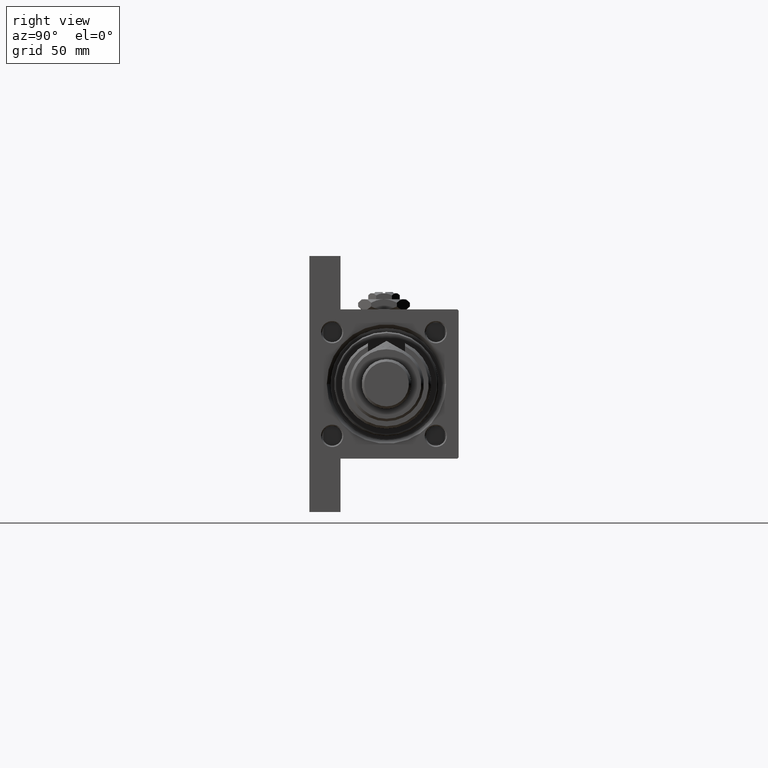
[diagram: clean part render]
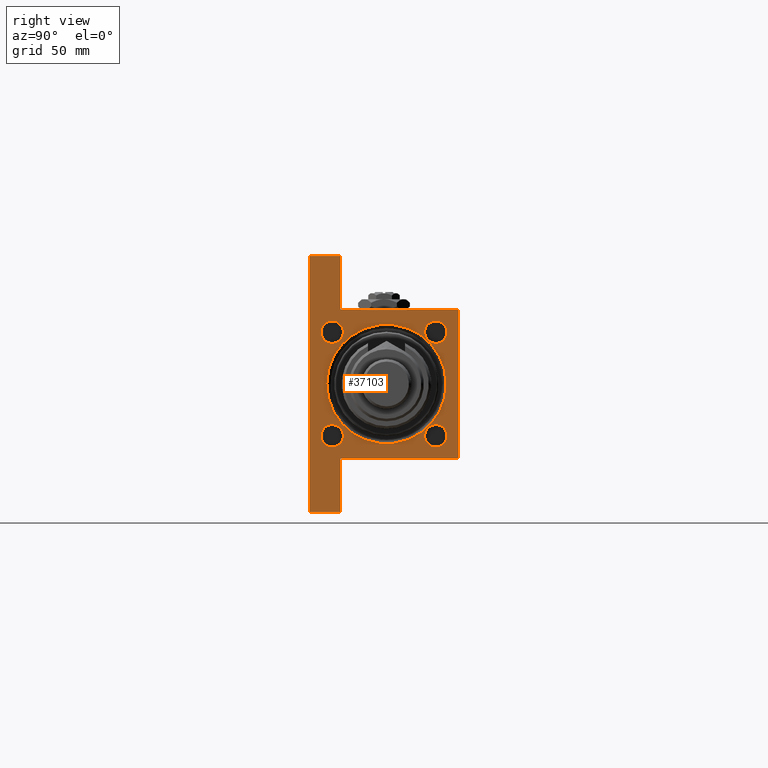
[diagram: same view with one face highlighted and labeled with its STEP entity id]
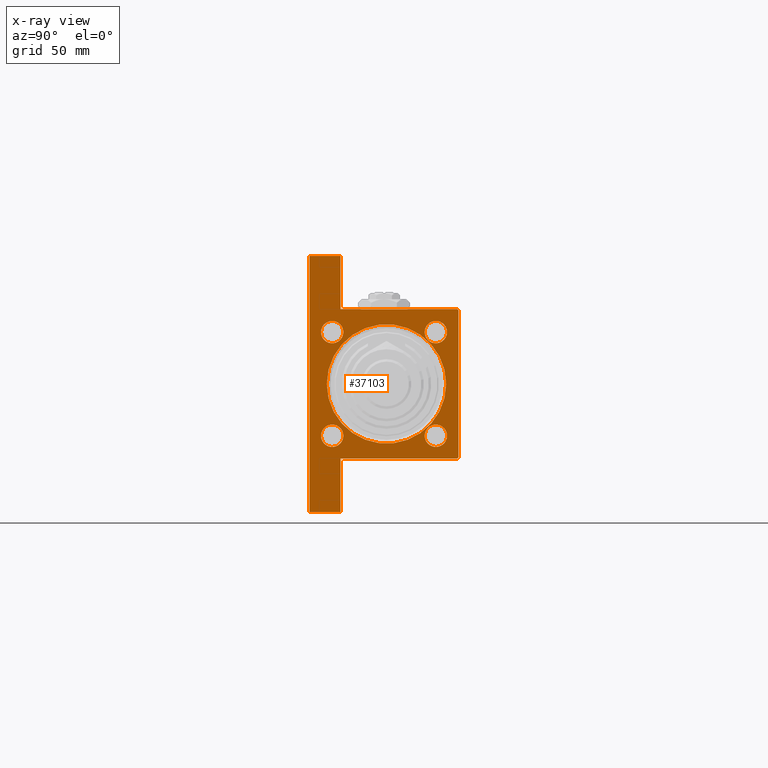
[diagram: x-ray of the same camera — body ghosted, the highlighted face saturated]
A machine part, right view. The second image highlights one B-rep face of the part: STEP entity #37103.
The next image is the same camera in x-ray: the body ghosted, the highlighted face saturated — about 0% of this face is hidden behind the body in this view.
In plain terms, the highlighted planar face has unit normal (-1, 0, -0).
Its self-contained STEP definition (entity closure, byte-faithful):
#21 = AXIS2_PLACEMENT_3D ( 'NONE', #46358, #45297, #29021 ) ;
#243 = CARTESIAN_POINT ( 'NONE',  ( 148.0000000000000000, 20.84999999999999787, 25.34999999999999076 ) ) ;
#399 = CARTESIAN_POINT ( 'NONE',  ( 148.0000000000000000, 20.84999999999999787, 20.85000000000000142 ) ) ;
#1059 = EDGE_CURVE ( 'NONE', #16541, #41829, #20651, .T. ) ;
#1921 = EDGE_CURVE ( 'NONE', #27005, #7205, #39138, .T. ) ;
#2018 = VECTOR ( 'NONE', #42343, 1000.000000000000000 ) ;
#2399 = ORIENTED_EDGE ( 'NONE', *, *, #2448, .T. ) ;
#2448 = EDGE_CURVE ( 'NONE', #33938, #47965, #46711, .T. ) ;
#2578 = DIRECTION ( 'NONE',  ( 0.000000000000000000, 0.000000000000000000, 1.000000000000000000 ) ) ;
#3714 = LINE ( 'NONE', #16721, #10689 ) ;
#4102 = VECTOR ( 'NONE', #15295, 1000.000000000000000 ) ;
#4621 = EDGE_CURVE ( 'NONE', #45165, #6705, #19100, .T. ) ;
#4739 = VERTEX_POINT ( 'NONE', #35497 ) ;
#4856 = CARTESIAN_POINT ( 'NONE',  ( 148.0000000000000000, -30.00000000000000000, 29.50000000000004619 ) ) ;
#5110 = DIRECTION ( 'NONE',  ( 0.000000000000000000, 0.000000000000000000, 1.000000000000000000 ) ) ;
#5243 = DIRECTION ( 'NONE',  ( -0.000000000000000000, 0.000000000000000000, 1.000000000000000000 ) ) ;
#5522 = FACE_BOUND ( 'NONE', #50068, .T. ) ;
#6151 = CARTESIAN_POINT ( 'NONE',  ( 148.0000000000000000, -30.00000000000000000, 29.99999999999999289 ) ) ;
#6228 = ORIENTED_EDGE ( 'NONE', *, *, #42849, .T. ) ;
#6229 = EDGE_CURVE ( 'NONE', #31622, #42554, #43378, .T. ) ;
#6528 = ORIENTED_EDGE ( 'NONE', *, *, #1921, .T. ) ;
#6615 = DIRECTION ( 'NONE',  ( 0.000000000000000000, 0.000000000000000000, 1.000000000000000000 ) ) ;
#6629 = CARTESIAN_POINT ( 'NONE',  ( 148.0000000000000000, 30.00000000000000000, 29.50000000000000000 ) ) ;
#6705 = VERTEX_POINT ( 'NONE', #9682 ) ;
#7205 = VERTEX_POINT ( 'NONE', #21759 ) ;
#7505 = CIRCLE ( 'NONE', #36092, 4.499999999999990230 ) ;
#7921 = VECTOR ( 'NONE', #18624, 1000.000000000000114 ) ;
#8441 = DIRECTION ( 'NONE',  ( 0.000000000000000000, -1.000000000000000000, -1.156482317317871478E-16 ) ) ;
#8652 = VERTEX_POINT ( 'NONE', #41731 ) ;
#9078 = CIRCLE ( 'NONE', #33319, 4.499999999999990230 ) ;
#9309 = EDGE_CURVE ( 'NONE', #8652, #4739, #12201, .T. ) ;
#9682 = CARTESIAN_POINT ( 'NONE',  ( 148.0000000000000000, 20.84999999999999787, 16.35000000000001208 ) ) ;
#10183 = DIRECTION ( 'NONE',  ( -1.000000000000000000, 0.000000000000000000, -0.000000000000000000 ) ) ;
#10205 = LINE ( 'NONE', #23217, #7921 ) ;
#10689 = VECTOR ( 'NONE', #12406, 1000.000000000000000 ) ;
#10724 = DIRECTION ( 'NONE',  ( 0.000000000000000000, 0.000000000000000000, 1.000000000000000000 ) ) ;
#10881 = ORIENTED_EDGE ( 'NONE', *, *, #32187, .T. ) ;
#11058 = EDGE_LOOP ( 'NONE', ( #50637, #22202 ) ) ;
#11224 = EDGE_CURVE ( 'NONE', #13423, #20517, #18203, .T. ) ;
#11959 = ORIENTED_EDGE ( 'NONE', *, *, #12270, .T. ) ;
#12201 = LINE ( 'NONE', #16518, #24371 ) ;
#12270 = EDGE_CURVE ( 'NONE', #6705, #45165, #7505, .T. ) ;
#12313 = CARTESIAN_POINT ( 'NONE',  ( 148.0000000000000000, 2.939152317953652628E-15, 25.00000000000004619 ) ) ;
#12406 = DIRECTION ( 'NONE',  ( -0.000000000000000000, -0.7071067811865671127, -0.7071067811865279218 ) ) ;
#12549 = AXIS2_PLACEMENT_3D ( 'NONE', #46211, #33731, #5243 ) ;
#13199 = CARTESIAN_POINT ( 'NONE',  ( 148.0000000000000000, 29.99999999999999289, -17.49999999999999645 ) ) ;
#13274 = DIRECTION ( 'NONE',  ( -1.000000000000000000, 0.000000000000000000, -0.000000000000000000 ) ) ;
#13402 = FACE_BOUND ( 'NONE', #11058, .T. ) ;
#13423 = VERTEX_POINT ( 'NONE', #23842 ) ;
#13452 = CARTESIAN_POINT ( 'NONE',  ( 148.0000000000000000, -51.50000000000000711, -17.49999999999999645 ) ) ;
#13569 = DIRECTION ( 'NONE',  ( -1.000000000000000000, 0.000000000000000000, -0.000000000000000000 ) ) ;
#13924 = CARTESIAN_POINT ( 'NONE',  ( 148.0000000000000000, -20.85000000000000142, -20.85000000000000142 ) ) ;
#14030 = DIRECTION ( 'NONE',  ( 0.000000000000000000, 0.000000000000000000, -1.000000000000000000 ) ) ;
#14228 = EDGE_CURVE ( 'NONE', #18227, #20517, #16101, .T. ) ;
#14463 = DIRECTION ( 'NONE',  ( -1.000000000000000000, 0.000000000000000000, -0.000000000000000000 ) ) ;
#15064 = DIRECTION ( 'NONE',  ( 0.000000000000000000, 0.000000000000000000, 1.000000000000000000 ) ) ;
#15295 = DIRECTION ( 'NONE',  ( 0.000000000000000000, 0.000000000000000000, -1.000000000000000000 ) ) ;
#15322 = DIRECTION ( 'NONE',  ( -1.000000000000000000, 0.000000000000000000, -0.000000000000000000 ) ) ;
#15677 = VECTOR ( 'NONE', #36707, 1000.000000000000000 ) ;
#15685 = CARTESIAN_POINT ( 'NONE',  ( 148.0000000000000000, -30.00000000000000000, -17.49999999999998224 ) ) ;
#15784 = AXIS2_PLACEMENT_3D ( 'NONE', #51245, #13569, #26032 ) ;
#16060 = CARTESIAN_POINT ( 'NONE',  ( 148.0000000000000000, 30.00000000000000000, 30.00000000000000000 ) ) ;
#16101 = LINE ( 'NONE', #32907, #4102 ) ;
#16222 = CARTESIAN_POINT ( 'NONE',  ( 148.0000000000000000, -51.50000000000000711, -17.49999999999999645 ) ) ;
#16518 = CARTESIAN_POINT ( 'NONE',  ( 148.0000000000000000, 30.00000000000000000, -29.99999999999999289 ) ) ;
#16541 = VERTEX_POINT ( 'NONE', #21142 ) ;
#16721 = CARTESIAN_POINT ( 'NONE',  ( 148.0000000000000000, -30.00000000000000000, 29.50000000000004619 ) ) ;
#16944 = DIRECTION ( 'NONE',  ( -1.000000000000000000, 0.000000000000000000, -0.000000000000000000 ) ) ;
#17527 = EDGE_LOOP ( 'NONE', ( #27667, #21655 ) ) ;
#17639 = ORIENTED_EDGE ( 'NONE', *, *, #4621, .T. ) ;
#17675 = CARTESIAN_POINT ( 'NONE',  ( 148.0000000000000000, 51.49999999999999289, -17.49999999999999645 ) ) ;
#18056 = EDGE_CURVE ( 'NONE', #27382, #48296, #34373, .T. ) ;
#18203 = LINE ( 'NONE', #17675, #2018 ) ;
#18227 = VERTEX_POINT ( 'NONE', #6629 ) ;
#18249 = CARTESIAN_POINT ( 'NONE',  ( 148.0000000000000000, 20.84999999999999787, -25.34999999999999076 ) ) ;
#18624 = DIRECTION ( 'NONE',  ( 0.000000000000000000, -0.7071067811865474617, 0.7071067811865474617 ) ) ;
#18820 = CARTESIAN_POINT ( 'NONE',  ( 148.0000000000000000, 0.000000000000000000, 1.000000000000007772 ) ) ;
#19085 = EDGE_CURVE ( 'NONE', #39803, #4739, #46791, .T. ) ;
#19100 = CIRCLE ( 'NONE', #21, 4.499999999999990230 ) ;
#19120 = CARTESIAN_POINT ( 'NONE',  ( 148.0000000000000000, 20.84999999999999787, -20.85000000000000142 ) ) ;
#19656 = CARTESIAN_POINT ( 'NONE',  ( 148.0000000000000000, 0.000000000000000000, -23.00000000000003197 ) ) ;
#20002 = AXIS2_PLACEMENT_3D ( 'NONE', #18820, #43780, #6615 ) ;
#20517 = VERTEX_POINT ( 'NONE', #13199 ) ;
#20651 = CIRCLE ( 'NONE', #40602, 4.499999999999990230 ) ;
#21142 = CARTESIAN_POINT ( 'NONE',  ( 148.0000000000000000, -20.85000000000000142, -25.34999999999999076 ) ) ;
#21312 = CARTESIAN_POINT ( 'NONE',  ( 148.0000000000000000, -20.84999999999999432, 16.35000000000001208 ) ) ;
#21413 = ORIENTED_EDGE ( 'NONE', *, *, #24833, .F. ) ;
#21655 = ORIENTED_EDGE ( 'NONE', *, *, #37149, .T. ) ;
#21759 = CARTESIAN_POINT ( 'NONE',  ( 148.0000000000000000, -29.50000000000002487, 29.99999999999999289 ) ) ;
#22202 = ORIENTED_EDGE ( 'NONE', *, *, #38848, .T. ) ;
#22205 = CARTESIAN_POINT ( 'NONE',  ( 148.0000000000000000, -20.84999999999999432, 20.85000000000000142 ) ) ;
#22923 = CARTESIAN_POINT ( 'NONE',  ( 148.0000000000000000, -20.85000000000000142, -20.85000000000000142 ) ) ;
#22940 = CARTESIAN_POINT ( 'NONE',  ( 148.0000000000000000, -20.84999999999999432, 25.34999999999999076 ) ) ;
#23180 = DIRECTION ( 'NONE',  ( -1.000000000000000000, 0.000000000000000000, -0.000000000000000000 ) ) ;
#23217 = CARTESIAN_POINT ( 'NONE',  ( 148.0000000000000000, 29.50000000000000000, 30.00000000000000000 ) ) ;
#23842 = CARTESIAN_POINT ( 'NONE',  ( 148.0000000000000000, 51.49999999999999289, -17.49999999999999645 ) ) ;
#24371 = VECTOR ( 'NONE', #45538, 1000.000000000000000 ) ;
#24833 = EDGE_CURVE ( 'NONE', #13423, #8652, #41045, .T. ) ;
#24930 = CARTESIAN_POINT ( 'NONE',  ( 148.0000000000000000, 0.000000000000000000, 1.000000000000007772 ) ) ;
#25902 = CIRCLE ( 'NONE', #40631, 4.499999999999990230 ) ;
#26014 = ORIENTED_EDGE ( 'NONE', *, *, #29015, .T. ) ;
#26032 = DIRECTION ( 'NONE',  ( 0.000000000000000000, 0.000000000000000000, 1.000000000000000000 ) ) ;
#26816 = DIRECTION ( 'NONE',  ( -1.000000000000000000, 0.000000000000000000, -0.000000000000000000 ) ) ;
#27005 = VERTEX_POINT ( 'NONE', #51249 ) ;
#27382 = VERTEX_POINT ( 'NONE', #4856 ) ;
#27667 = ORIENTED_EDGE ( 'NONE', *, *, #1059, .T. ) ;
#28140 = CIRCLE ( 'NONE', #48032, 4.499999999999990230 ) ;
#28958 = EDGE_LOOP ( 'NONE', ( #11959, #17639 ) ) ;
#29015 = EDGE_CURVE ( 'NONE', #18227, #27005, #10205, .T. ) ;
#29021 = DIRECTION ( 'NONE',  ( 0.000000000000000000, 0.000000000000000000, 1.000000000000000000 ) ) ;
#29130 = FACE_BOUND ( 'NONE', #44427, .T. ) ;
#29229 = VECTOR ( 'NONE', #14030, 1000.000000000000000 ) ;
#29665 = FACE_OUTER_BOUND ( 'NONE', #41169, .T. ) ;
#30693 = CARTESIAN_POINT ( 'NONE',  ( 148.0000000000000000, 20.84999999999999787, -16.35000000000001208 ) ) ;
#31622 = VERTEX_POINT ( 'NONE', #12313 ) ;
#32187 = EDGE_CURVE ( 'NONE', #47965, #33938, #34848, .T. ) ;
#32782 = DIRECTION ( 'NONE',  ( 0.000000000000000000, 0.000000000000000000, -1.000000000000000000 ) ) ;
#32866 = ORIENTED_EDGE ( 'NONE', *, *, #14228, .F. ) ;
#32907 = CARTESIAN_POINT ( 'NONE',  ( 148.0000000000000000, 30.00000000000000000, 30.00000000000000000 ) ) ;
#33319 = AXIS2_PLACEMENT_3D ( 'NONE', #13924, #14463, #35090 ) ;
#33731 = DIRECTION ( 'NONE',  ( -1.000000000000000000, 0.000000000000000000, -0.000000000000000000 ) ) ;
#33876 = EDGE_CURVE ( 'NONE', #7205, #27382, #3714, .T. ) ;
#33938 = VERTEX_POINT ( 'NONE', #18249 ) ;
#34373 = LINE ( 'NONE', #6151, #29229 ) ;
#34848 = CIRCLE ( 'NONE', #15784, 4.499999999999990230 ) ;
#34954 = VERTEX_POINT ( 'NONE', #22940 ) ;
#35090 = DIRECTION ( 'NONE',  ( 0.000000000000000000, 0.000000000000000000, 1.000000000000000000 ) ) ;
#35497 = CARTESIAN_POINT ( 'NONE',  ( 148.0000000000000000, -51.50000000000000711, -29.99999999999999645 ) ) ;
#35903 = CARTESIAN_POINT ( 'NONE',  ( 148.0000000000000000, 51.49999999999999289, -17.49999999999999645 ) ) ;
#36092 = AXIS2_PLACEMENT_3D ( 'NONE', #399, #16944, #38903 ) ;
#36707 = DIRECTION ( 'NONE',  ( 0.000000000000000000, 0.000000000000000000, -1.000000000000000000 ) ) ;
#36718 = VECTOR ( 'NONE', #49034, 1000.000000000000000 ) ;
#36778 = EDGE_CURVE ( 'NONE', #53101, #34954, #28140, .T. ) ;
#36919 = ORIENTED_EDGE ( 'NONE', *, *, #19085, .T. ) ;
#37090 = VECTOR ( 'NONE', #32782, 1000.000000000000000 ) ;
#37103 = ADVANCED_FACE ( 'NONE', ( #38065, #13402, #46472, #29130, #5522, #29665 ), #46737, .F. ) ;
#37149 = EDGE_CURVE ( 'NONE', #41829, #16541, #9078, .T. ) ;
#38065 = FACE_BOUND ( 'NONE', #28958, .T. ) ;
#38179 = CIRCLE ( 'NONE', #45116, 24.00000000000003908 ) ;
#38848 = EDGE_CURVE ( 'NONE', #34954, #53101, #25902, .T. ) ;
#38903 = DIRECTION ( 'NONE',  ( 0.000000000000000000, 0.000000000000000000, 1.000000000000000000 ) ) ;
#39138 = LINE ( 'NONE', #16060, #39747 ) ;
#39292 = ORIENTED_EDGE ( 'NONE', *, *, #6229, .T. ) ;
#39595 = CARTESIAN_POINT ( 'NONE',  ( 148.0000000000000000, -20.85000000000000142, -16.35000000000001208 ) ) ;
#39747 = VECTOR ( 'NONE', #8441, 1000.000000000000000 ) ;
#39803 = VERTEX_POINT ( 'NONE', #40171 ) ;
#40171 = CARTESIAN_POINT ( 'NONE',  ( 148.0000000000000000, -51.50000000000000711, -17.49999999999999645 ) ) ;
#40260 = ORIENTED_EDGE ( 'NONE', *, *, #11224, .T. ) ;
#40602 = AXIS2_PLACEMENT_3D ( 'NONE', #22923, #23180, #10724 ) ;
#40631 = AXIS2_PLACEMENT_3D ( 'NONE', #22205, #26816, #43349 ) ;
#40678 = AXIS2_PLACEMENT_3D ( 'NONE', #19120, #15322, #2578 ) ;
#41045 = LINE ( 'NONE', #35903, #15677 ) ;
#41169 = EDGE_LOOP ( 'NONE', ( #32866, #26014, #6528, #49397, #42871, #43657, #36919, #50416, #21413, #40260 ) ) ;
#41731 = CARTESIAN_POINT ( 'NONE',  ( 148.0000000000000000, 51.49999999999999289, -29.99999999999999645 ) ) ;
#41829 = VERTEX_POINT ( 'NONE', #39595 ) ;
#42343 = DIRECTION ( 'NONE',  ( 0.000000000000000000, -1.000000000000000000, 0.000000000000000000 ) ) ;
#42554 = VERTEX_POINT ( 'NONE', #19656 ) ;
#42849 = EDGE_CURVE ( 'NONE', #42554, #31622, #38179, .T. ) ;
#42871 = ORIENTED_EDGE ( 'NONE', *, *, #18056, .T. ) ;
#43349 = DIRECTION ( 'NONE',  ( 0.000000000000000000, 0.000000000000000000, 1.000000000000000000 ) ) ;
#43378 = CIRCLE ( 'NONE', #20002, 24.00000000000003908 ) ;
#43657 = ORIENTED_EDGE ( 'NONE', *, *, #48382, .T. ) ;
#43780 = DIRECTION ( 'NONE',  ( -1.000000000000000000, 0.000000000000000000, -0.000000000000000000 ) ) ;
#44427 = EDGE_LOOP ( 'NONE', ( #2399, #10881 ) ) ;
#45116 = AXIS2_PLACEMENT_3D ( 'NONE', #24930, #13274, #5110 ) ;
#45165 = VERTEX_POINT ( 'NONE', #243 ) ;
#45297 = DIRECTION ( 'NONE',  ( -1.000000000000000000, 0.000000000000000000, -0.000000000000000000 ) ) ;
#45538 = DIRECTION ( 'NONE',  ( 0.000000000000000000, -1.000000000000000000, -1.156482317317871478E-16 ) ) ;
#46211 = CARTESIAN_POINT ( 'NONE',  ( 148.0000000000000000, 0.000000000000000000, 0.000000000000000000 ) ) ;
#46358 = CARTESIAN_POINT ( 'NONE',  ( 148.0000000000000000, 20.84999999999999787, 20.85000000000000142 ) ) ;
#46472 = FACE_BOUND ( 'NONE', #17527, .T. ) ;
#46711 = CIRCLE ( 'NONE', #40678, 4.499999999999990230 ) ;
#46737 = PLANE ( 'NONE',  #12549 ) ;
#46791 = LINE ( 'NONE', #13452, #37090 ) ;
#47345 = CARTESIAN_POINT ( 'NONE',  ( 148.0000000000000000, -20.84999999999999432, 20.85000000000000142 ) ) ;
#47965 = VERTEX_POINT ( 'NONE', #30693 ) ;
#48032 = AXIS2_PLACEMENT_3D ( 'NONE', #47345, #10183, #15064 ) ;
#48296 = VERTEX_POINT ( 'NONE', #15685 ) ;
#48382 = EDGE_CURVE ( 'NONE', #48296, #39803, #53626, .T. ) ;
#49034 = DIRECTION ( 'NONE',  ( -0.000000000000000000, -1.000000000000000000, -0.000000000000000000 ) ) ;
#49397 = ORIENTED_EDGE ( 'NONE', *, *, #33876, .T. ) ;
#50068 = EDGE_LOOP ( 'NONE', ( #6228, #39292 ) ) ;
#50416 = ORIENTED_EDGE ( 'NONE', *, *, #9309, .F. ) ;
#50637 = ORIENTED_EDGE ( 'NONE', *, *, #36778, .T. ) ;
#51245 = CARTESIAN_POINT ( 'NONE',  ( 148.0000000000000000, 20.84999999999999787, -20.85000000000000142 ) ) ;
#51249 = CARTESIAN_POINT ( 'NONE',  ( 148.0000000000000000, 29.50000000000000000, 30.00000000000000000 ) ) ;
#53101 = VERTEX_POINT ( 'NONE', #21312 ) ;
#53626 = LINE ( 'NONE', #16222, #36718 ) ;